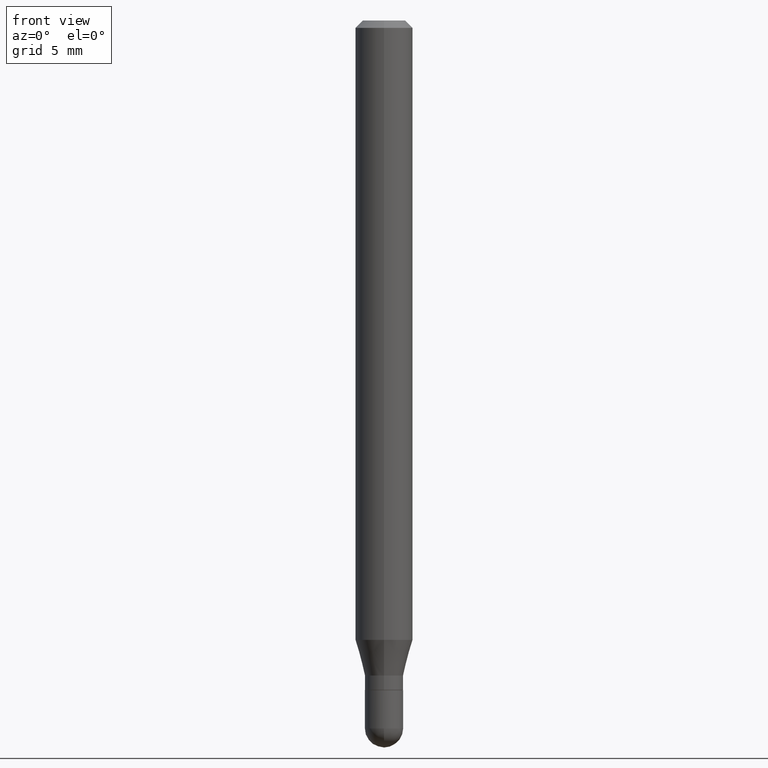
[diagram: clean part render]
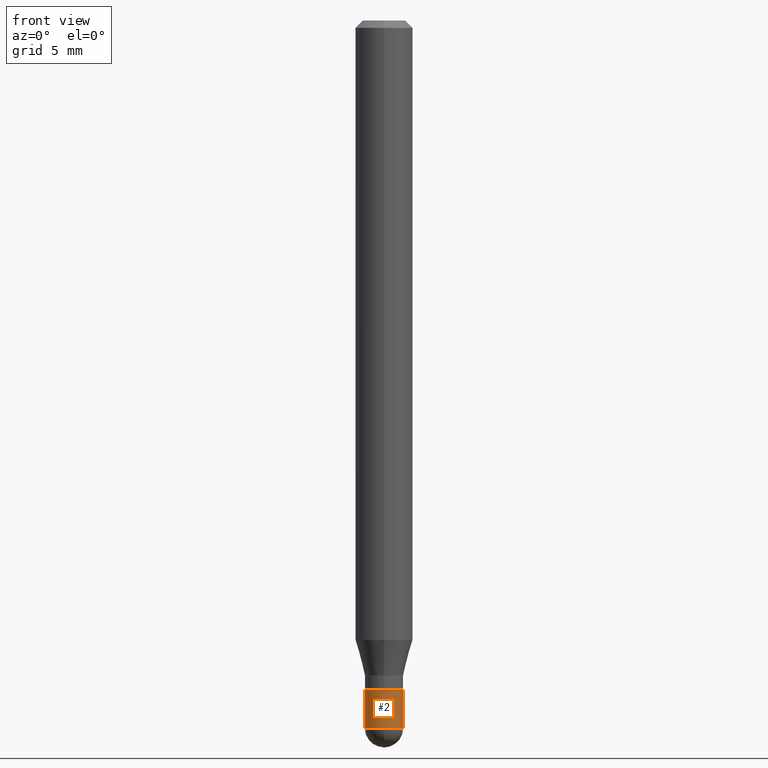
[diagram: same view with one face highlighted and labeled with its STEP entity id]
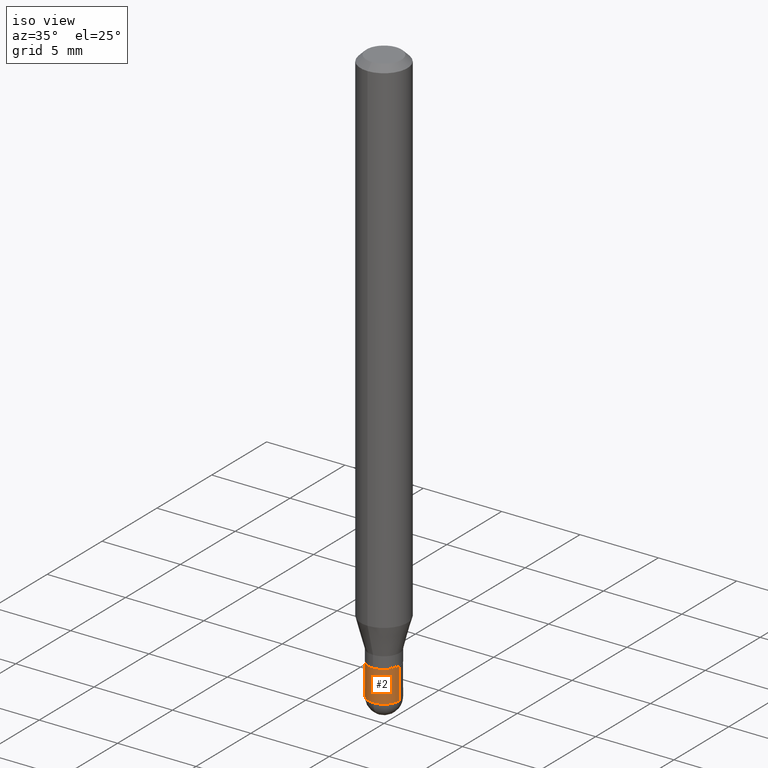
[diagram: same view with one face highlighted and labeled with its STEP entity id]
A machine part, front view. The second image highlights one B-rep face of the part: STEP entity #2.
A second angle (iso view) of the same face is appended — the face is thin or edge-on in the first view.
In plain terms, the highlighted cylindrical surface (edge-blend (fillet) strip) has radius 0.9995 mm, axis along (-0, 0, 1).
Its self-contained STEP definition (entity closure, byte-faithful):
#2 = ADVANCED_FACE ( 'NONE', ( #409 ), #485, .T. ) ;
#10 = EDGE_LOOP ( 'NONE', ( #512, #134, #327, #281, #200 ) ) ;
#14 = CIRCLE ( 'NONE', #29, 0.03934999999999999609 ) ;
#18 = DIRECTION ( 'NONE',  ( -2.445468806185136877E-29, 3.491481338843145188E-15, 1.000000000000000000 ) ) ;
#20 = DIRECTION ( 'NONE',  ( -2.445468806185136597E-29, 3.491481338843145583E-15, 1.000000000000000000 ) ) ;
#23 = CARTESIAN_POINT ( 'NONE',  ( 0.000000000000000000, 0.000000000000000000, 0.000000000000000000 ) ) ;
#25 = DIRECTION ( 'NONE',  ( -2.445468806185136597E-29, 3.491481338843145583E-15, 1.000000000000000000 ) ) ;
#29 = AXIS2_PLACEMENT_3D ( 'NONE', #294, #25, #302 ) ;
#88 = CARTESIAN_POINT ( 'NONE',  ( -2.747795813669188758E-16, -0.03935000000000507536, -1.456749999999999323 ) ) ;
#91 = AXIS2_PLACEMENT_3D ( 'NONE', #23, #20, #491 ) ;
#93 = VERTEX_POINT ( 'NONE', #498 ) ;
#101 = CARTESIAN_POINT ( 'NONE',  ( -0.03935000000000000303, -4.669139796121204075E-15, -1.377999999999999892 ) ) ;
#110 = DIRECTION ( 'NONE',  ( -2.445468806185136597E-29, 3.491481338843145583E-15, 1.000000000000000000 ) ) ;
#125 = EDGE_CURVE ( 'NONE', #93, #229, #233, .T. ) ;
#134 = ORIENTED_EDGE ( 'NONE', *, *, #125, .T. ) ;
#156 = DIRECTION ( 'NONE',  ( 1.000000000000000000, -6.982962677686270655E-15, 0.000000000000000000 ) ) ;
#158 = AXIS2_PLACEMENT_3D ( 'NONE', #338, #110, #215 ) ;
#161 = LINE ( 'NONE', #482, #428 ) ;
#171 = EDGE_CURVE ( 'NONE', #270, #328, #411, .T. ) ;
#200 = ORIENTED_EDGE ( 'NONE', *, *, #451, .F. ) ;
#201 = EDGE_CURVE ( 'NONE', #93, #369, #161, .T. ) ;
#207 = DIRECTION ( 'NONE',  ( -2.445468806185136597E-29, 3.491481338843145583E-15, 1.000000000000000000 ) ) ;
#215 = DIRECTION ( 'NONE',  ( 1.000000000000000000, -6.982962677686269077E-15, 0.000000000000000000 ) ) ;
#229 = VERTEX_POINT ( 'NONE', #88 ) ;
#233 = CIRCLE ( 'NONE', #453, 0.03934999999999999609 ) ;
#247 = CARTESIAN_POINT ( 'NONE',  ( 0.03935000000000000303, -5.086040866292808868E-15, -1.377999999999999892 ) ) ;
#270 = VERTEX_POINT ( 'NONE', #394 ) ;
#281 = ORIENTED_EDGE ( 'NONE', *, *, #171, .T. ) ;
#291 = VECTOR ( 'NONE', #18, 39.37007874015748143 ) ;
#294 = CARTESIAN_POINT ( 'NONE',  ( 3.562436683410197186E-29, -5.086215440359751413E-15, -1.456749999999999767 ) ) ;
#302 = DIRECTION ( 'NONE',  ( 1.000000000000000000, -6.982962677686270655E-15, 0.000000000000000000 ) ) ;
#327 = ORIENTED_EDGE ( 'NONE', *, *, #385, .T. ) ;
#328 = VERTEX_POINT ( 'NONE', #247 ) ;
#338 = CARTESIAN_POINT ( 'NONE',  ( 3.369856014923117948E-29, -4.811261284925853951E-15, -1.377999999999999892 ) ) ;
#369 = VERTEX_POINT ( 'NONE', #101 ) ;
#385 = EDGE_CURVE ( 'NONE', #229, #270, #14, .T. ) ;
#394 = CARTESIAN_POINT ( 'NONE',  ( 0.03934999999999999609, -5.223517944009757599E-15, -1.456749999999999767 ) ) ;
#409 = FACE_OUTER_BOUND ( 'NONE', #10, .T. ) ;
#411 = LINE ( 'NONE', #416, #291 ) ;
#416 = CARTESIAN_POINT ( 'NONE',  ( 0.03935000000000000303, -2.747795813669546211E-16, 1.918775561275701074E-30 ) ) ;
#428 = VECTOR ( 'NONE', #435, 39.37007874015748143 ) ;
#435 = DIRECTION ( 'NONE',  ( -2.445468806185136877E-29, 3.491481338843145188E-15, 1.000000000000000000 ) ) ;
#451 = EDGE_CURVE ( 'NONE', #369, #328, #469, .T. ) ;
#453 = AXIS2_PLACEMENT_3D ( 'NONE', #494, #207, #156 ) ;
#469 = CIRCLE ( 'NONE', #158, 0.03935000000000000303 ) ;
#482 = CARTESIAN_POINT ( 'NONE',  ( -0.03935000000000000303, 2.795985665215994447E-16, -1.935600958015305291E-30 ) ) ;
#485 = CYLINDRICAL_SURFACE ( 'NONE', #91, 0.03935000000000000303 ) ;
#491 = DIRECTION ( 'NONE',  ( 1.000000000000000000, -6.982962677686266711E-15, 4.876176775795936353E-29 ) ) ;
#494 = CARTESIAN_POINT ( 'NONE',  ( 3.562436683410197186E-29, -5.086215440359751413E-15, -1.456749999999999767 ) ) ;
#498 = CARTESIAN_POINT ( 'NONE',  ( -0.03934999999999999609, -4.669139796121204075E-15, -1.456749999999999767 ) ) ;
#512 = ORIENTED_EDGE ( 'NONE', *, *, #201, .F. ) ;